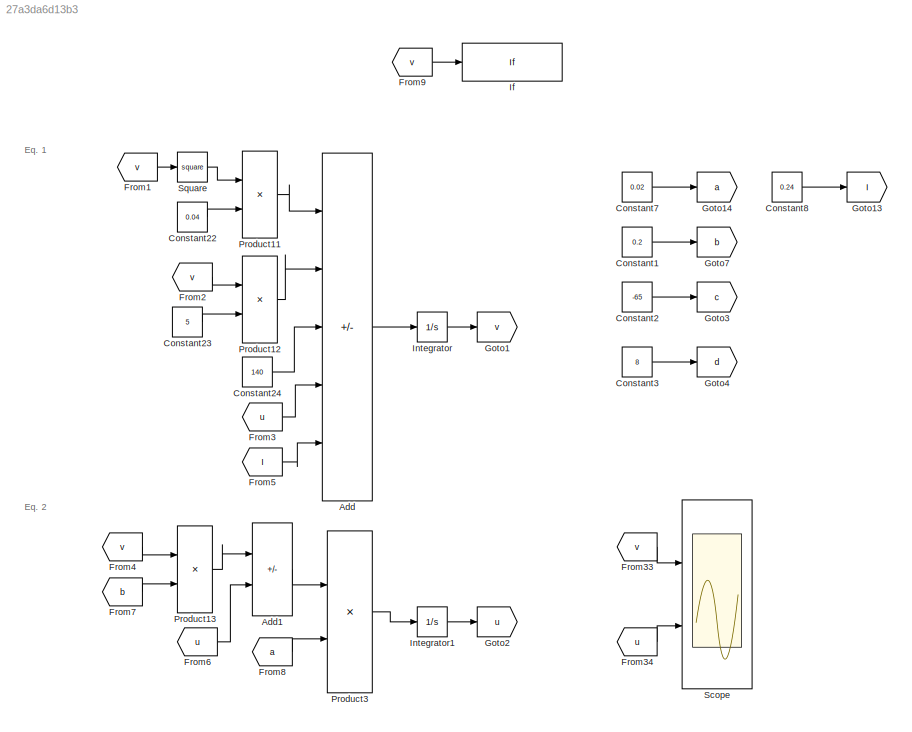
MODEL slx_27a3da6d13b3
KIND model
CONFIG AbsTol = auto
CONFIG EnableMultiTasking = off
CONFIG FixedStep = auto
CONFIG MaxStep = auto
CONFIG MinStep = auto
CONFIG RelTol = 1e-3
CONFIG SampleTimeConstraint = Unconstrained
CONFIG SolverName = VariableStepAuto
CONFIG StartTime = 15
CONFIG StopTime = 10
BLOCK [Sum] Add
  IconShape = rectangular
  Inputs = +++-+
  Ports = [5, 1]
BLOCK [Sum] Add1
  IconShape = rectangular
  Inputs = +-
  Ports = [2, 1]
BLOCK [Constant] Constant1
  Value = 0.2
BLOCK [Constant] Constant2
  Value = -65
BLOCK [Constant] Constant22
  Value = 0.04
BLOCK [Constant] Constant23
  Value = 5
BLOCK [Constant] Constant24
  Value = 140
BLOCK [Constant] Constant3
  Value = 8
BLOCK [Constant] Constant7
  Value = 0.02
BLOCK [Constant] Constant8
  Value = 0.24
BLOCK [From] From1
  GotoTag = v
BLOCK [From] From2
  GotoTag = v
BLOCK [From] From3
  GotoTag = u
BLOCK [From] From33
  GotoTag = v
BLOCK [From] From34
  GotoTag = u
BLOCK [From] From4
  GotoTag = v
BLOCK [From] From5
  GotoTag = I
BLOCK [From] From6
  GotoTag = u
BLOCK [From] From7
  GotoTag = b
BLOCK [From] From8
  GotoTag = a
BLOCK [From] From9
  GotoTag = v
BLOCK [Goto] Goto1
  GotoTag = v
BLOCK [Goto] Goto13
  GotoTag = I
BLOCK [Goto] Goto14
  GotoTag = a
BLOCK [Goto] Goto2
  GotoTag = u
BLOCK [Goto] Goto3
  GotoTag = c
BLOCK [Goto] Goto4
  GotoTag = d
BLOCK [Goto] Goto7
  GotoTag = b
BLOCK [If] If
  IfExpression = u1 >= 30
  Ports = [1, 1]
  ShowElse = off
BLOCK [Integrator] Integrator
  Ports = [1, 1]
BLOCK [Integrator] Integrator1
  Ports = [1, 1]
BLOCK [Product] Product11
  Ports = [2, 1]
BLOCK [Product] Product12
  Ports = [2, 1]
BLOCK [Product] Product13
  Ports = [2, 1]
BLOCK [Product] Product3
  Inputs = **
  Ports = [2, 1]
BLOCK [Scope] Scope
  Floating = off
  NumInputPorts = 2
  Ports = [2]
  ScopeSpecificationString = Simulink.scopes.TimeScopeBlockCfg('CurrentConfiguration', extmgr.ConfigurationSet(extmgr.Configuration('Core','General UI',true),extmgr.Configuration('Core','Source UI',true),extmgr.Configuration('Sources','WiredSimulink',true),extmgr.Configuration('Visuals','Time Domain',true,'SerializedDisplays',{struct('MinYLimReal','-41.42897','MaxYLimReal','34.61868','YLabelReal','','MinYLimMag','0.00000','Ma...<+2640ch>
BLOCK [Math] Square
  Operator = square
  Ports = [1, 1]
ANNOTATION (root): Eq. 1
ANNOTATION (root): Eq. 2
LINE Add1:1 -> Product3:1
LINE Add:1 -> Integrator:1
LINE Constant1:1 -> Goto7:1
LINE Constant22:1 -> Product11:2
LINE Constant23:1 -> Product12:2
LINE Constant24:1 -> Add:3
LINE Constant2:1 -> Goto3:1
LINE Constant3:1 -> Goto4:1
LINE Constant7:1 -> Goto14:1
LINE Constant8:1 -> Goto13:1
LINE From1:1 -> Square:1
LINE From2:1 -> Product12:1
LINE From33:1 -> Scope:1
LINE From34:1 -> Scope:2
LINE From3:1 -> Add:4
LINE From4:1 -> Product13:1
LINE From5:1 -> Add:5
LINE From6:1 -> Add1:2
LINE From7:1 -> Product13:2
LINE From8:1 -> Product3:2
LINE From9:1 -> If:1
LINE Integrator1:1 -> Goto2:1
LINE Integrator:1 -> Goto1:1
LINE Product11:1 -> Add:1
LINE Product12:1 -> Add:2
LINE Product13:1 -> Add1:1
LINE Product3:1 -> Integrator1:1
LINE Square:1 -> Product11:1
